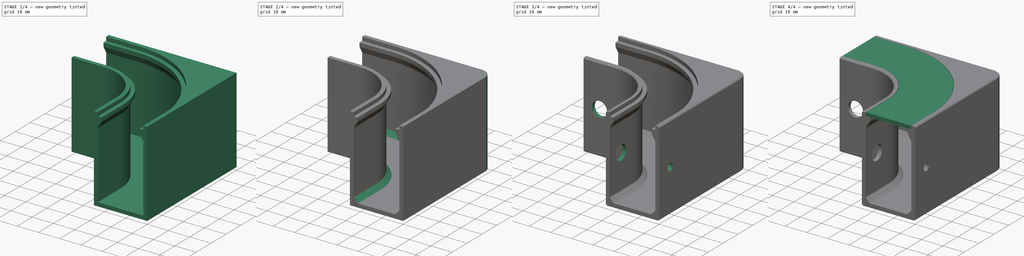
[diagram: build sequence overview — one tinted view per stage of 4, left to right]
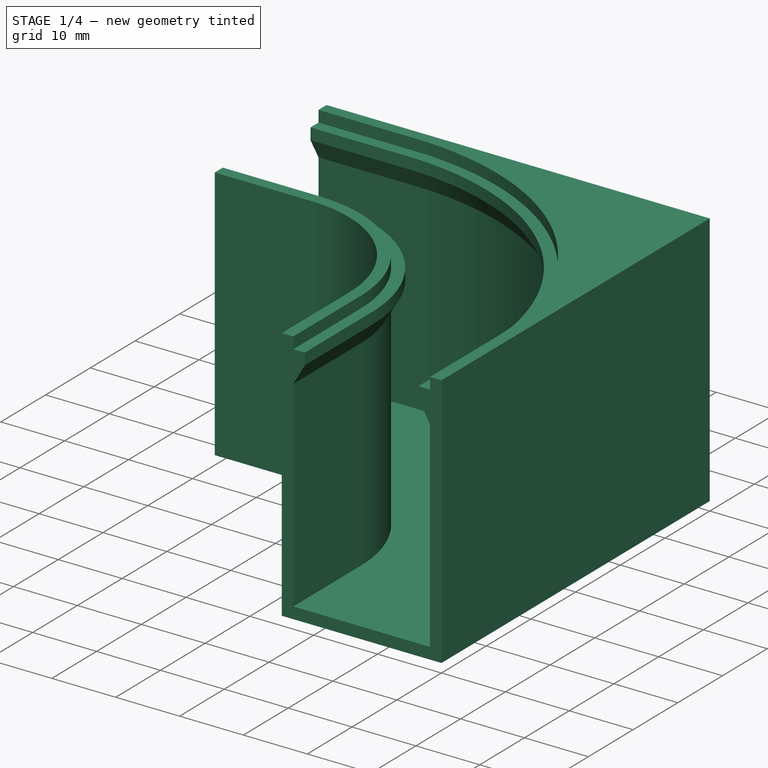
[diagram: stage 1 of 4 — iso view after this stage's code; geometry added in this stage tinted green]
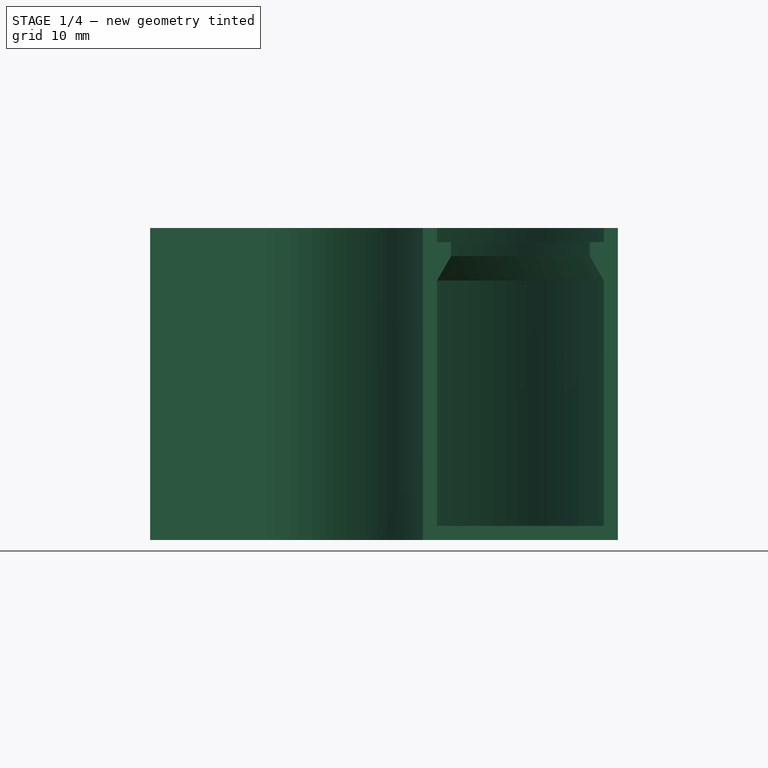
[diagram: stage 1 of 4 — front view after this stage's code; geometry added in this stage tinted green]
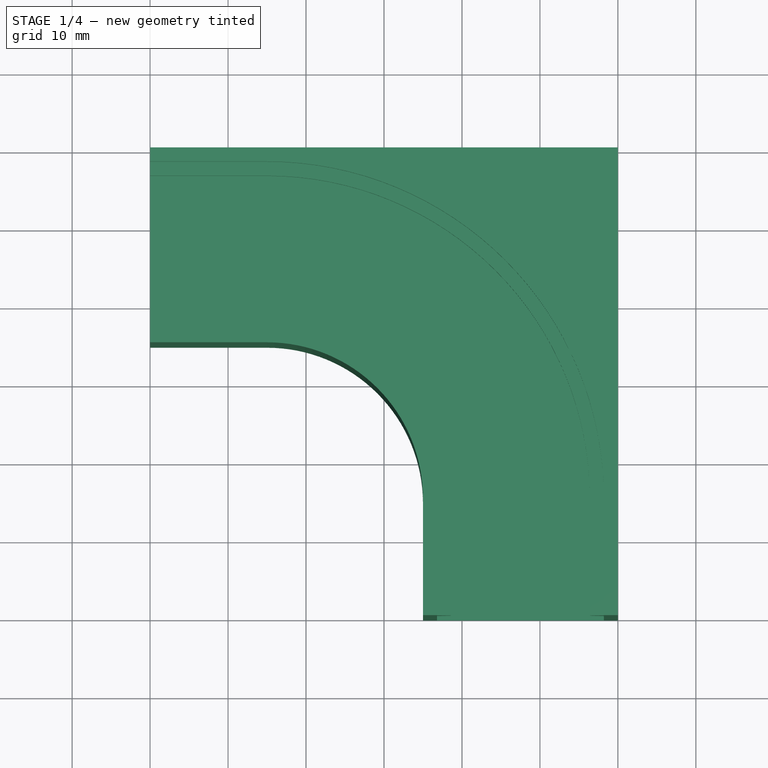
[diagram: stage 1 of 4 — top view after this stage's code; geometry added in this stage tinted green]
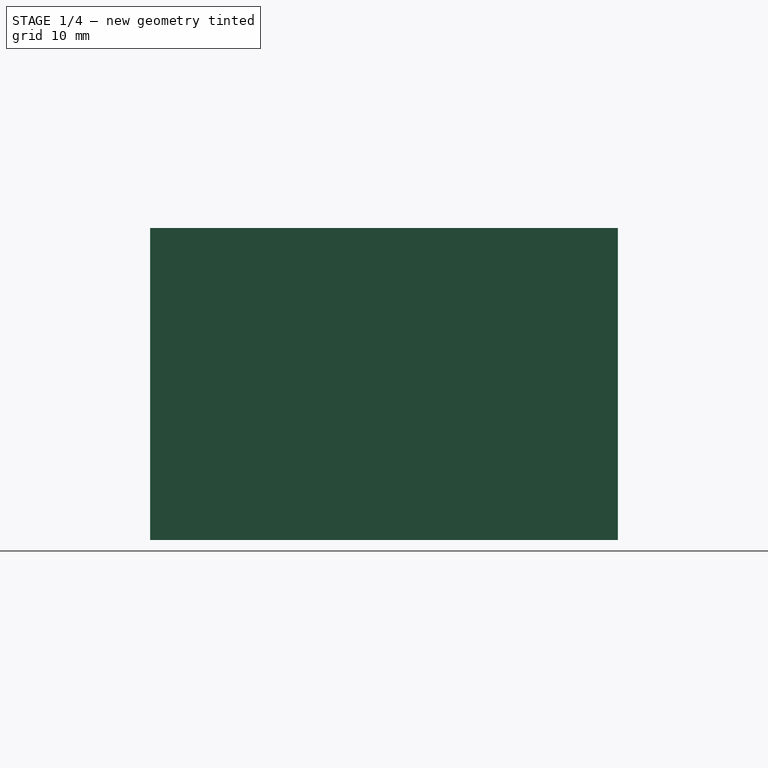
[diagram: stage 1 of 4 — right view after this stage's code; geometry added in this stage tinted green]
FCSTD DOCUMENT  (FreeCAD 0.19R24291 (Git))
Label: cable_canal_corner
License: All rights reserved
LicenseURL: http://en.wikipedia.org/wiki/All_rights_reserved
objects: Sketcher::SketchObject×5, PartDesign::Chamfer×3, PartDesign::Body×2, PartDesign::Hole×2, PartDesign::Pad×1, PartDesign::SubtractivePipe×1, PartDesign::Fillet×1, PartDesign::Plane×1, PartDesign::AdditivePipe×1, App::Part×1
note: 26 computed .brp shape members not serialized (recipe doc carries the construction recipe); baked Part::Feature solids carry a one-line shape summary decoded from their .brp

FEATURE [Sketcher::SketchObject] Sketch
  FullyConstrained = true
  MapMode = 5
  Support = -> [XY_Plane001]
  sketch-geometry (7):
    g0: LineSegment StartX=-60 StartY=0 StartZ=0 EndX=0 EndY=0 EndZ=0
    g1: LineSegment StartX=0 StartY=0 StartZ=0 EndX=0 EndY=-60 EndZ=0
    g2: LineSegment StartX=0 StartY=-60 StartZ=0 EndX=-25 EndY=-60 EndZ=0
    g3: LineSegment StartX=-25 StartY=-60 StartZ=0 EndX=-25 EndY=-45 EndZ=0
    g4: LineSegment StartX=-60 StartY=0 StartZ=0 EndX=-60 EndY=-25 EndZ=0
    g5: LineSegment StartX=-60 StartY=-25 StartZ=0 EndX=-45 EndY=-25 EndZ=0
    g6: ArcOfCircle CenterX=-45 CenterY=-45 CenterZ=0 NormalX=0 NormalY=0 NormalZ=1 AngleXU=0 Radius=20 StartAngle=7e-16 EndAngle=1.5708
  constraints (19):
    c: PointOnObject(g0,g-1)
    c: Coincident(g0,g-1)
    c: Coincident(g0,g1)
    c: PointOnObject(g1,g-2)
    c: Coincident(g1,g2)
    c: Horizontal(g2)
    c: Coincident(g2,g3)
    c: Vertical(g3)
    c: Coincident(g0,g4)
    c: Vertical(g4)
    c: Coincident(g4,g5)
    c: Horizontal(g5)
    c: Tangent(g6,g3) = -1.5708
    c: Tangent(g6,g5) = 1.5708
    c: Equal(g0,g1)
    c: Equal(g2,g4)
    c: DistanceX(g2,g2) = 25
    c: DistanceY(g1,g1) = 60
    c: Radius(g6) = 20
FEATURE [PartDesign::Pad] Pad
  Direction = (1,1,1)
  Length = 40
  Length2 = 100
  Profile = -> Sketch
  Type = 0
FEATURE [Sketcher::SketchObject] Sketch001
  ExternalGeometry = -> [Pad]
  FullyConstrained = true
  MapMode = 5
  Placement = pos=(0,-60,0) rot=(1,0,0;1.5708rad)
  Support = -> [Pad]
  expr: Constraints[45] = .Constraints.shell_thickness
  expr: Constraints[44] = .Constraints.shell_thickness
  sketch-geometry (18):
    g0: LineSegment StartX=-23.2 StartY=38.2 StartZ=0 EndX=-1.8 EndY=38.2 EndZ=0
    g1: LineSegment StartX=-1.8 StartY=38.2 StartZ=0 EndX=-1.8 EndY=1.8 EndZ=0
    g2: LineSegment StartX=-1.8 StartY=1.8 StartZ=0 EndX=-23.2 EndY=1.8 EndZ=0
    g3: LineSegment StartX=-23.2 StartY=1.8 StartZ=0 EndX=-23.2 EndY=38.2 EndZ=0
    g4: GeomPoint X=-12.5 Y=20 Z=0
    g5: GeomPoint X=-12.5 Y=40 Z=0
    g6: LineSegment StartX=-1.8 StartY=1.8 StartZ=0 EndX=-1.8 EndY=33.2823 EndZ=0
    g7: LineSegment StartX=-23.2 StartY=1.8 StartZ=0 EndX=-23.2 EndY=33.2823 EndZ=0
    g8: LineSegment StartX=-23.2 StartY=33.2823 StartZ=0 EndX=-21.4 EndY=36.4 EndZ=0
    g9: LineSegment StartX=-1.8 StartY=33.2823 StartZ=0 EndX=-3.6 EndY=36.4 EndZ=0
    g10: LineSegment StartX=-3.6 StartY=36.4 StartZ=0 EndX=-21.4 EndY=36.4 EndZ=0
    g11: LineSegment StartX=-21.4 StartY=36.4 StartZ=0 EndX=-21.4 EndY=38.2 EndZ=0
    g12: LineSegment StartX=-3.6 StartY=38.2 StartZ=0 EndX=-3.6 EndY=36.4 EndZ=0
    g13: LineSegment StartX=-3.6 StartY=38.2 StartZ=0 EndX=-1.8 EndY=38.2 EndZ=0
    g14: LineSegment StartX=-1.8 StartY=38.2 StartZ=0 EndX=-1.8 EndY=40 EndZ=0
    g15: LineSegment StartX=-1.8 StartY=40 StartZ=0 EndX=-23.2 EndY=40 EndZ=0
    g16: LineSegment StartX=-23.2 StartY=40 StartZ=0 EndX=-23.2 EndY=38.2 EndZ=0
    g17: LineSegment StartX=-23.2 StartY=38.2 StartZ=0 EndX=-21.4 EndY=38.2 EndZ=0
  constraints (46):
    c: Coincident(g0,g1)
    c: Coincident(g1,g2)
    c: Coincident(g2,g3)
    c: Coincident(g3,g0)
    c: Horizontal(g0)
    c: Horizontal(g2)
    c: Vertical(g1)
    c: Vertical(g3)
    c: Symmetric(g2,g0,g4)
    c: Symmetric(g-3,g-3,g5)
    c: Vertical(g5,g4)
    c: Coincident(g6,g2)
    c: PointOnObject(g6,g1)
    c: Coincident(g7,g2)
    c: PointOnObject(g7,g3)
    c: Coincident(g8,g7)
    c: Coincident(g9,g6)
    c: Coincident(g10,g9)
    c: Coincident(g10,g8)
    c: Horizontal(g10)
    c: Horizontal(g6,g7)
    c: Coincident(g11,g8)
    c: PointOnObject(g11,g0)
    c: Coincident(g12,g9)
    c: Vertical(g12)
    c: Vertical(g11)
    c: PointOnObject(g12,g0)
    c: Coincident(g12,g13)
    c: Coincident(g13,g0)
    c: Coincident(g13,g14)
    c: Vertical(g14)
    c: Coincident(g14,g15)
    c: PointOnObject(g15,g-3)
    c: Horizontal(g15)
    c: Coincident(g15,g16)
    c: Coincident(g16,g0)
    c: Coincident(g16,g17)
    c: Coincident(g17,g11)
    c: Vertical(g16)
    c: Equal(g17,g13)
    c: Angle(g9,g6) = 2.61799
    c: Equal(g13,g14)
    c: Equal(g13,g12)
    c: DistanceY(g-1,g2) = 1.8  'shell_thickness'
    c: DistanceX(g2,g-1) = 1.8
    c: DistanceY(g14,g14) = 1.8
FEATURE [PartDesign::SubtractivePipe] SubtractivePipe
  AuxilleryCurvelinear = true
  AuxillerySpineTangent = false
  BaseFeature = -> Pad
  Binormal = (0,0,0)
  Mode = 0
  Profile = -> Sketch001
  Spine = -> Pad [Edge13,Edge16,Edge19]
  SpineTangent = false
  Transformation = 0
  Transition = 0
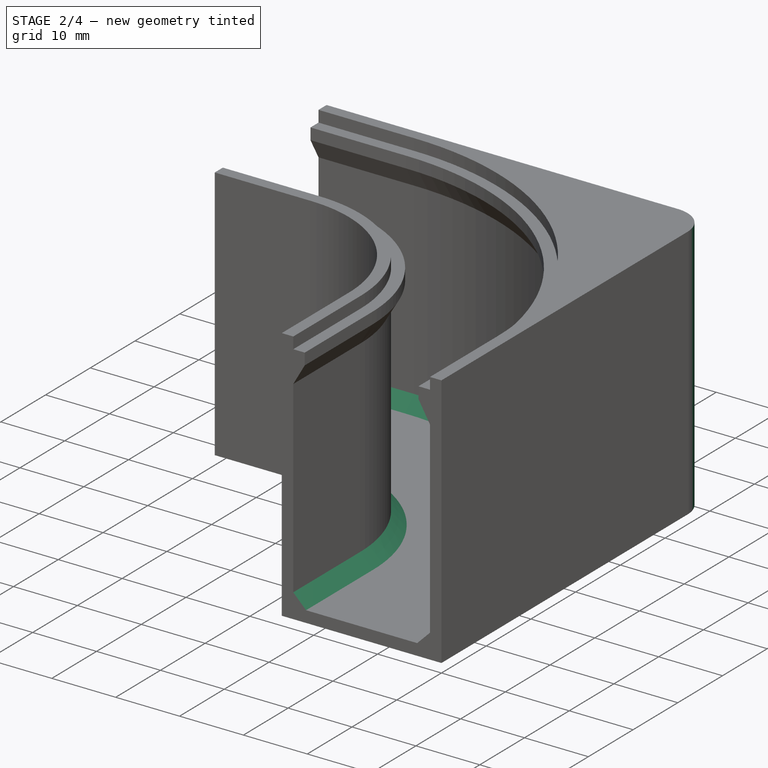
[diagram: stage 2 of 4 — iso view after this stage's code; geometry added in this stage tinted green]
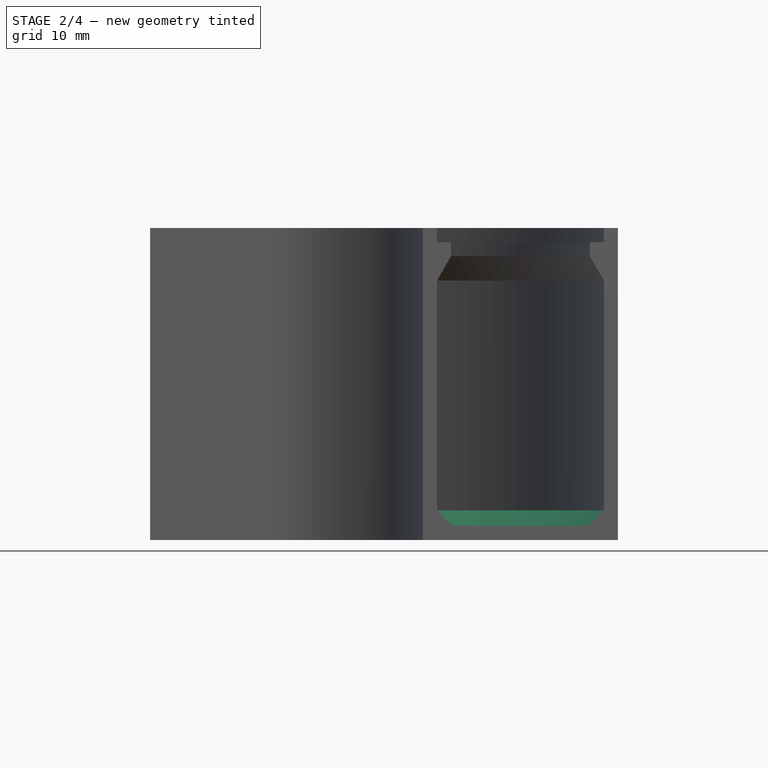
[diagram: stage 2 of 4 — front view after this stage's code; geometry added in this stage tinted green]
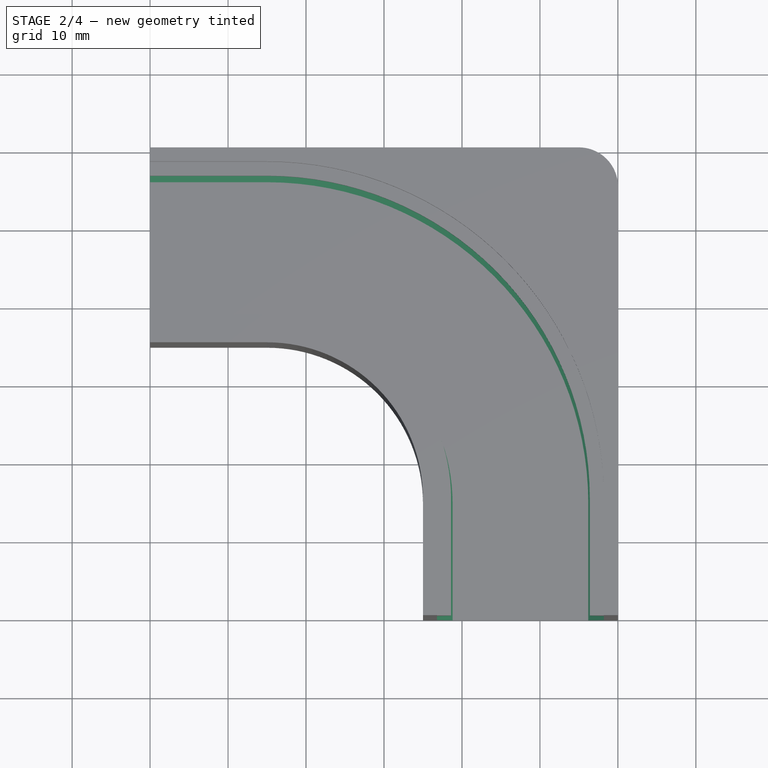
[diagram: stage 2 of 4 — top view after this stage's code; geometry added in this stage tinted green]
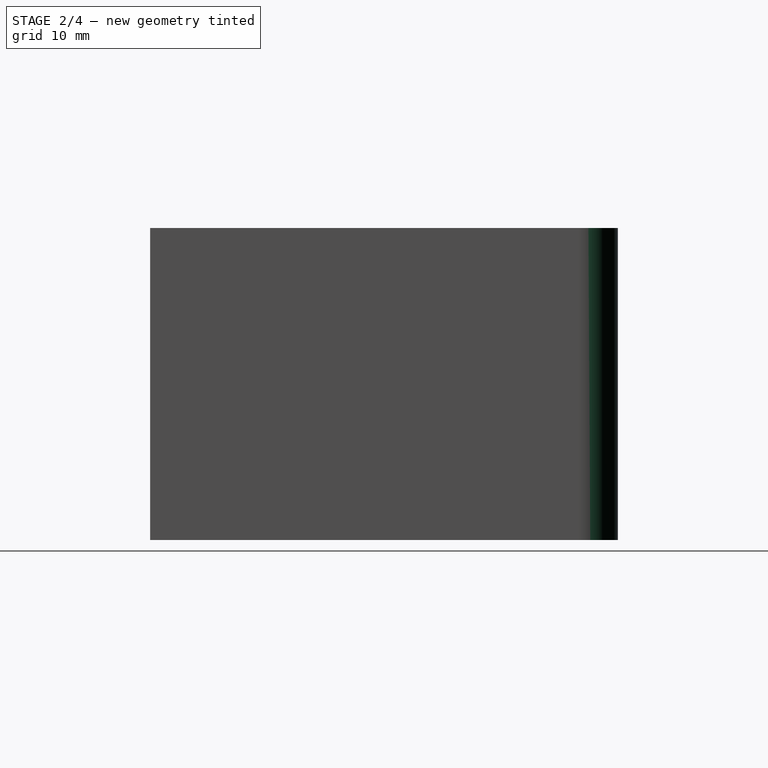
[diagram: stage 2 of 4 — right view after this stage's code; geometry added in this stage tinted green]
FEATURE [PartDesign::Fillet] Fillet
  Base = -> SubtractivePipe [Edge2]
  BaseFeature = -> SubtractivePipe
  Radius = 5
  SupportTransform = false
FEATURE [PartDesign::Chamfer] Chamfer
  Angle = 45
  Base = -> Fillet [Edge87,Edge89]
  BaseFeature = -> Fillet
  ChamferType = 0
  FlipDirection = false
  Size = 2
  Size2 = 1
  SupportTransform = false
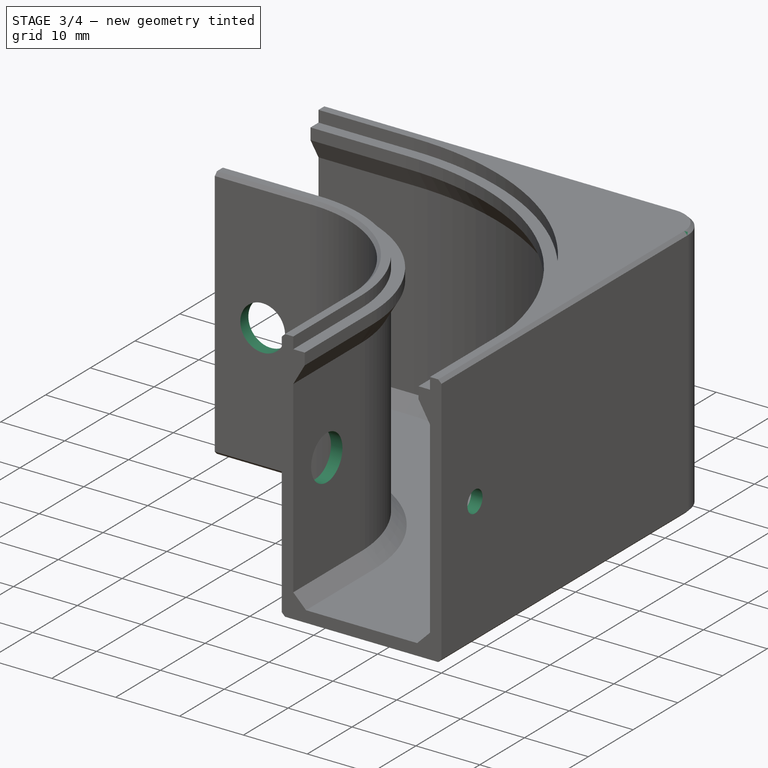
[diagram: stage 3 of 4 — iso view after this stage's code; geometry added in this stage tinted green]
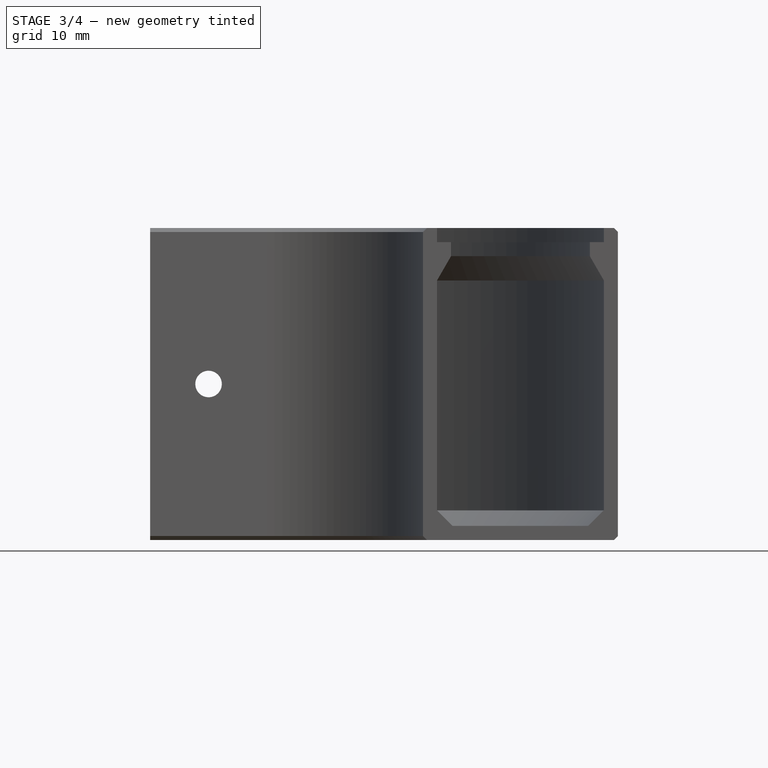
[diagram: stage 3 of 4 — front view after this stage's code; geometry added in this stage tinted green]
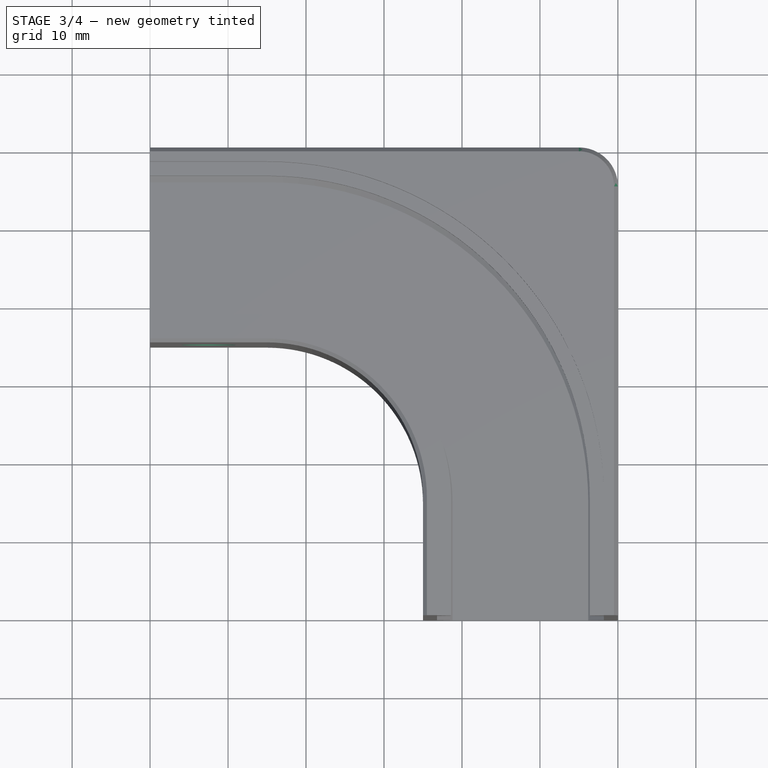
[diagram: stage 3 of 4 — top view after this stage's code; geometry added in this stage tinted green]
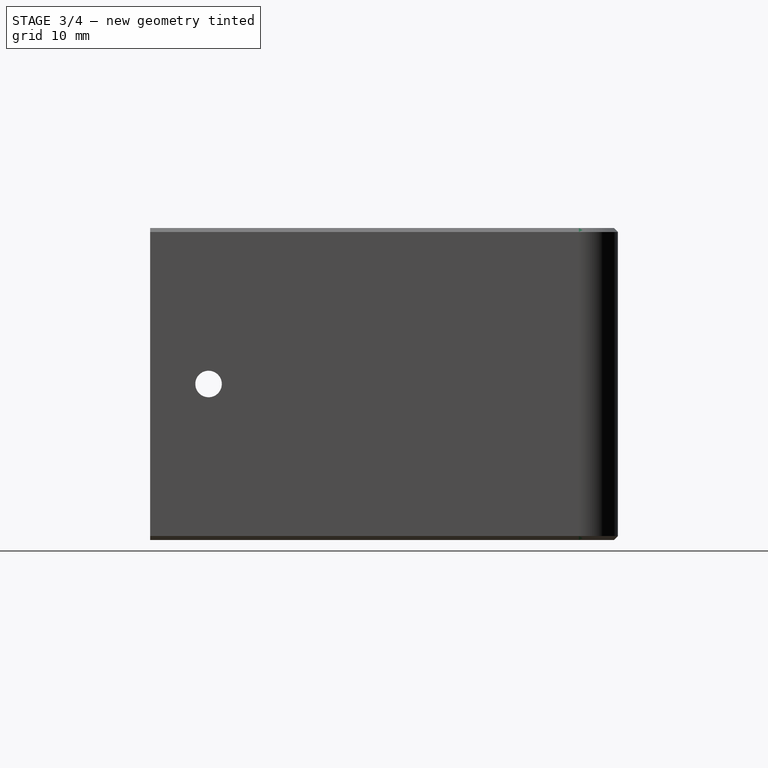
[diagram: stage 3 of 4 — right view after this stage's code; geometry added in this stage tinted green]
FEATURE [PartDesign::Chamfer] Chamfer001
  Angle = 45
  Base = -> Chamfer [Edge54,Edge57,Edge42,Edge62]
  BaseFeature = -> Chamfer
  ChamferType = 0
  FlipDirection = false
  Size = 0.5
  Size2 = 1
  SupportTransform = false
FEATURE [PartDesign::Body] Body001
  Group = -> [DatumPlane,Sketch002,AdditivePipe,Chamfer002]
  Origin = -> Origin002
  Tip = -> Chamfer002
FEATURE [Sketcher::SketchObject] Sketch003
  ExternalGeometry = -> [Chamfer001]
  FullyConstrained = false
  MapMode = 5
  Placement = pos=(-25,0,0) rot=(0.57735,-0.57735,-0.57735;2.0944rad)
  Support = -> [Chamfer001]
  sketch-geometry (2):
    g0: GeomPoint X=52.5 Y=20 Z=0
    g1: Circle CenterX=52.5 CenterY=20 CenterZ=0 NormalX=0 NormalY=0 NormalZ=1 AngleXU=0 Radius=4.38462
  constraints (2):
    c: Symmetric(g-4,g-3,g0)
    c: Coincident(g1,g0)
FEATURE [PartDesign::Hole] Hole
  BaseFeature = -> Chamfer001
  Depth = 25
  DepthType = 0
  Diameter = 3.4
  DrillForDepth = false
  DrillPoint = 0
  DrillPointAngle = 118
  HoleCutCountersinkAngle = 90
  HoleCutCustomValues = false
  HoleCutDepth = 10
  HoleCutDiameter = 7
  HoleCutType = 1
  ModelActualThread = false
  Profile = -> Sketch003
  Tapered = false
  TaperedAngle = 90
  ThreadAngle = 60
  ThreadClass = 0
  ThreadCutOffInner = 0.0270633
  ThreadCutOffOuter = 0.0541266
  ThreadDirection = 0
  ThreadFit = 0
  ThreadPitch = 0.25
  ThreadSize = 9
  ThreadType = 1
  Threaded = false
FEATURE [Sketcher::SketchObject] Sketch004
  ExternalGeometry = -> [Hole]
  FullyConstrained = false
  MapMode = 5
  Placement = pos=(0,-25,0) rot=(1,0,0;1.5708rad)
  Support = -> [Hole]
  sketch-geometry (2):
    g0: GeomPoint X=-52.5 Y=20 Z=0
    g1: Circle CenterX=-52.5 CenterY=20 CenterZ=0 NormalX=0 NormalY=0 NormalZ=1 AngleXU=0 Radius=3.22359
  constraints (2):
    c: Symmetric(g-3,g-4,g0)
    c: Coincident(g1,g0)
FEATURE [PartDesign::Hole] Hole001
  BaseFeature = -> Hole
  Depth = 25
  DepthType = 0
  Diameter = 3.4
  DrillForDepth = false
  DrillPoint = 0
  DrillPointAngle = 118
  HoleCutCountersinkAngle = 90
  HoleCutCustomValues = false
  HoleCutDepth = 10
  HoleCutDiameter = 7
  HoleCutType = 1
  ModelActualThread = false
  Profile = -> Sketch004
  Tapered = false
  TaperedAngle = 90
  ThreadAngle = 0
  ThreadClass = 0
  ThreadCutOffInner = 0
  ThreadCutOffOuter = 0
  ThreadDirection = 0
  ThreadFit = 0
  ThreadPitch = 0
  ThreadSize = 9
  ThreadType = 1
  Threaded = false
FEATURE [PartDesign::Body] Body
  Group = -> [Sketch,Pad,Sketch001,SubtractivePipe,Fillet,Chamfer,Chamfer001,Sketch003,Hole,Sketch004,Hole001]
  Origin = -> Origin001
  Tip = -> Hole001
FEATURE [App::Part] Part
  Group = -> [Body,Body001]
  Origin = -> Origin
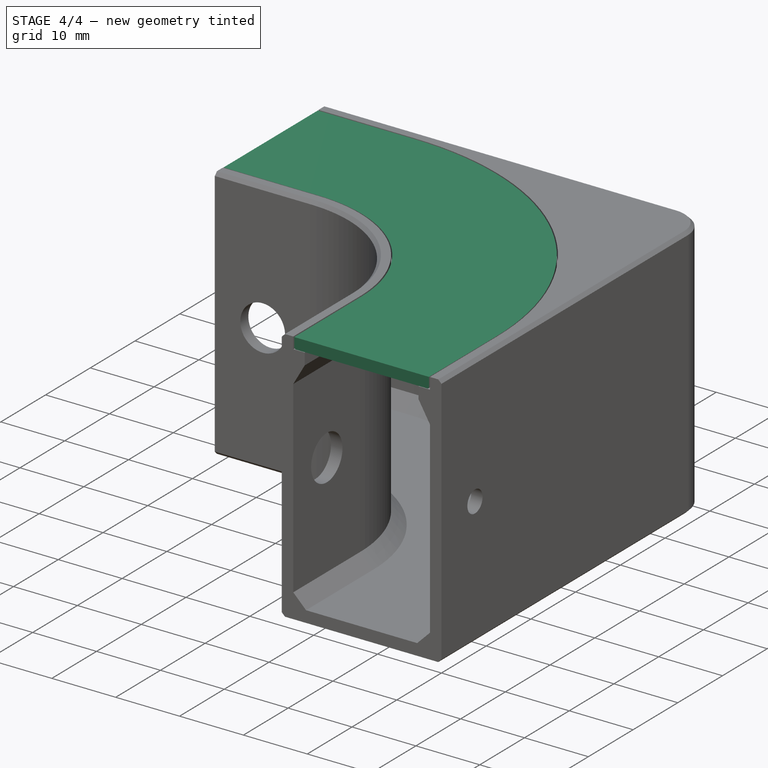
[diagram: stage 4 of 4 — iso view after this stage's code; geometry added in this stage tinted green]
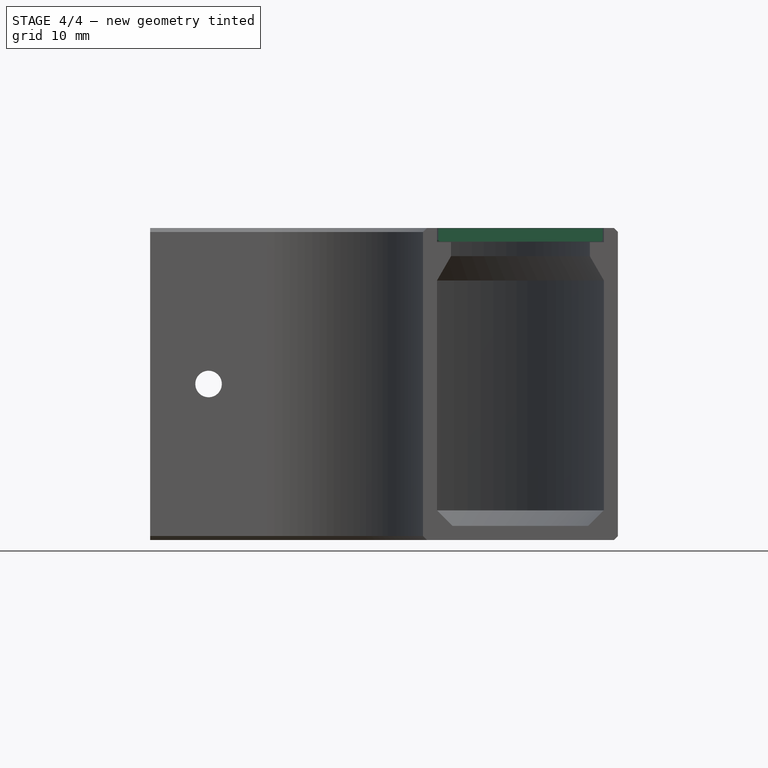
[diagram: stage 4 of 4 — front view after this stage's code; geometry added in this stage tinted green]
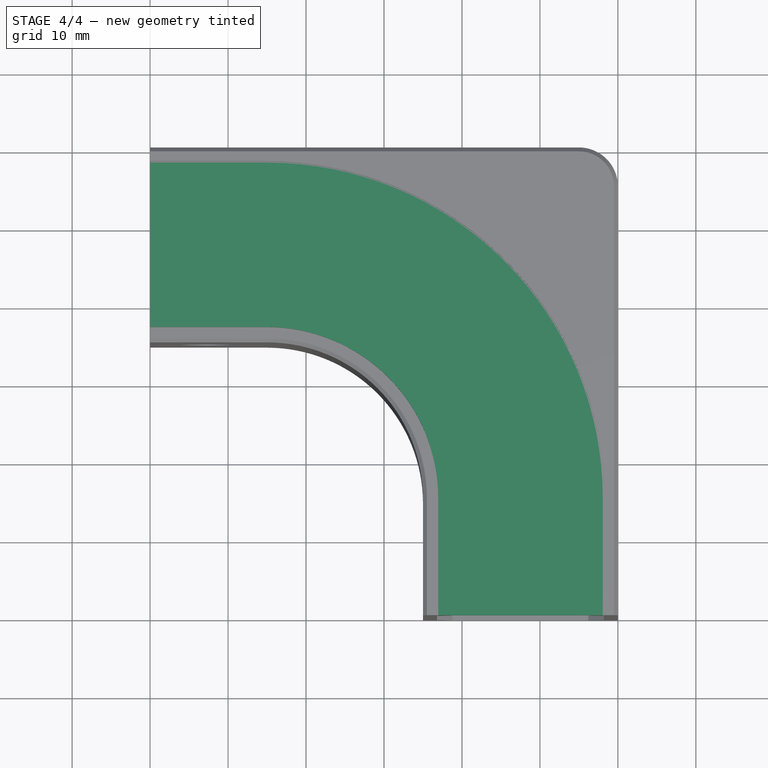
[diagram: stage 4 of 4 — top view after this stage's code; geometry added in this stage tinted green]
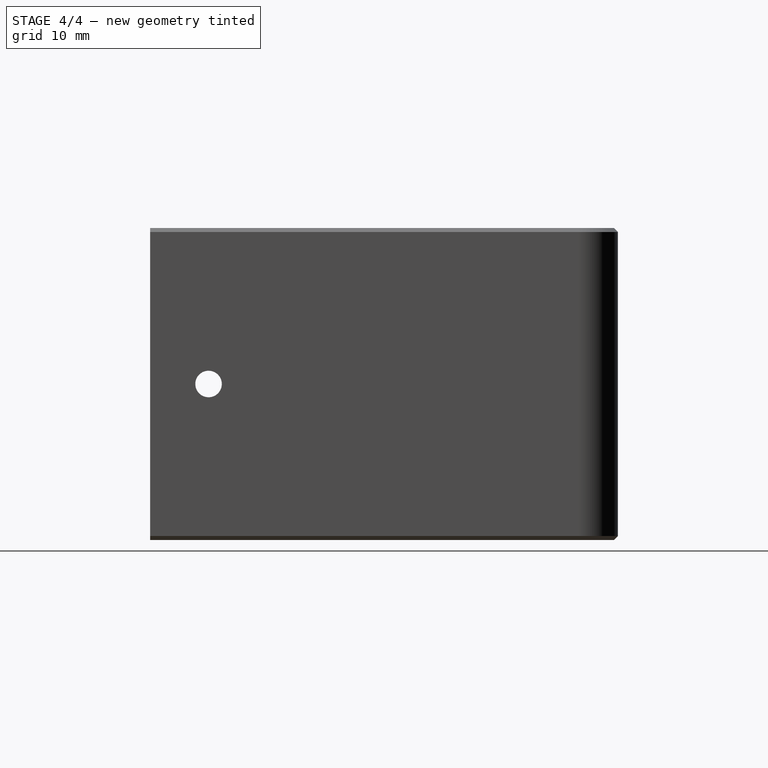
[diagram: stage 4 of 4 — right view after this stage's code; geometry added in this stage tinted green]
FEATURE [PartDesign::Plane] DatumPlane
  Length = 99.8622
  MapMode = 5
  Placement = pos=(0,-60,0) rot=(1,0,0;1.5708rad)
  ResizeMode = 0
  Support = -> [Chamfer001]
  Width = 79.828
FEATURE [Sketcher::SketchObject] Sketch002
  FullyConstrained = false
  MapMode = 5
  Placement = pos=(0,-60,0) rot=(1,0,0;1.5708rad)
  Support = -> [DatumPlane]
  sketch-geometry (4):
    g0: LineSegment StartX=-23.0433 StartY=39.9658 StartZ=0 EndX=-1.94331 EndY=39.9658 EndZ=0
    g1: LineSegment StartX=-1.94331 StartY=39.9658 StartZ=0 EndX=-1.94331 EndY=38.2658 EndZ=0
    g2: LineSegment StartX=-1.94331 StartY=38.2658 StartZ=0 EndX=-23.0433 EndY=38.2658 EndZ=0
    g3: LineSegment StartX=-23.0433 StartY=38.2658 StartZ=0 EndX=-23.0433 EndY=39.9658 EndZ=0
  constraints (10):
    c: Coincident(g0,g1)
    c: Coincident(g1,g2)
    c: Coincident(g2,g3)
    c: Coincident(g3,g0)
    c: Horizontal(g0)
    c: Horizontal(g2)
    c: Vertical(g1)
    c: Vertical(g3)
    c: DistanceX(g0,g0) = 21.1
    c: DistanceY(g1,g1) = 1.7
FEATURE [PartDesign::AdditivePipe] AdditivePipe
  AuxilleryCurvelinear = true
  AuxillerySpineTangent = false
  Binormal = (0,0,0)
  Mode = 0
  Placement = pos=(0,-60,0) rot=(1,0,0;1.5708rad)
  Profile = -> Sketch002
  Spine = -> Chamfer001 [Edge28,Edge26,Edge24]
  SpineTangent = false
  Transformation = 0
  Transition = 0
FEATURE [PartDesign::Chamfer] Chamfer002
  Angle = 45
  Base = -> AdditivePipe [Edge8,Edge10]
  BaseFeature = -> AdditivePipe
  ChamferType = 0
  FlipDirection = false
  Placement = pos=(0,-60,0) rot=(1,0,0;1.5708rad)
  Size = 0.2
  Size2 = 1
  SupportTransform = false
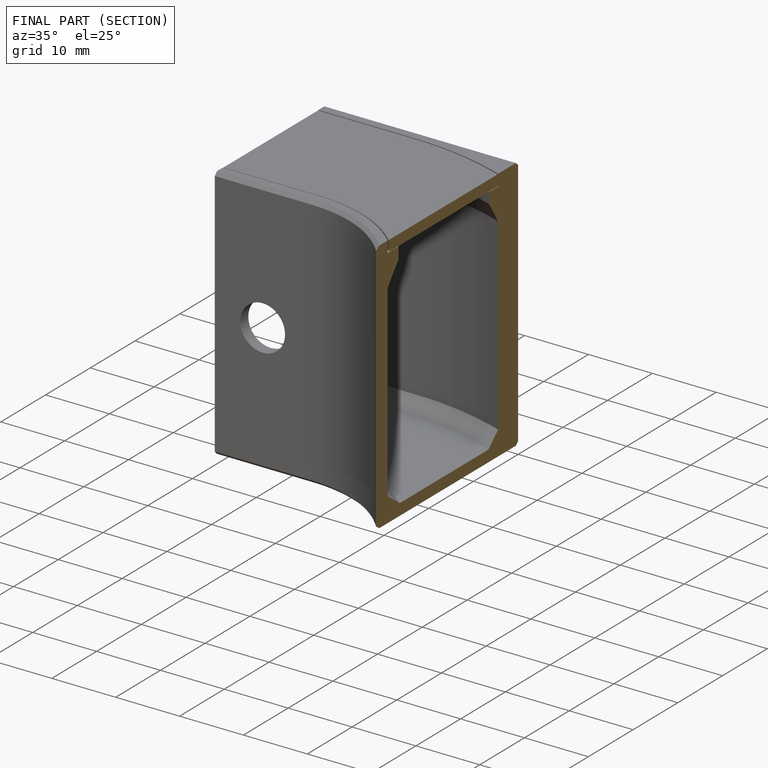
[diagram: finished part — half-section view (interior)]
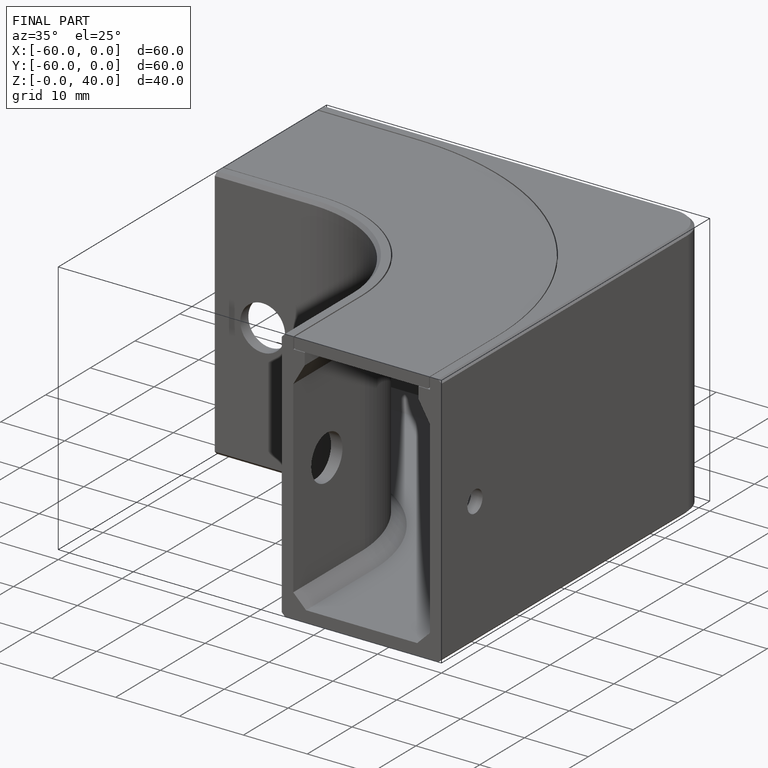
[diagram: finished part — iso view with bounding-box wireframe]
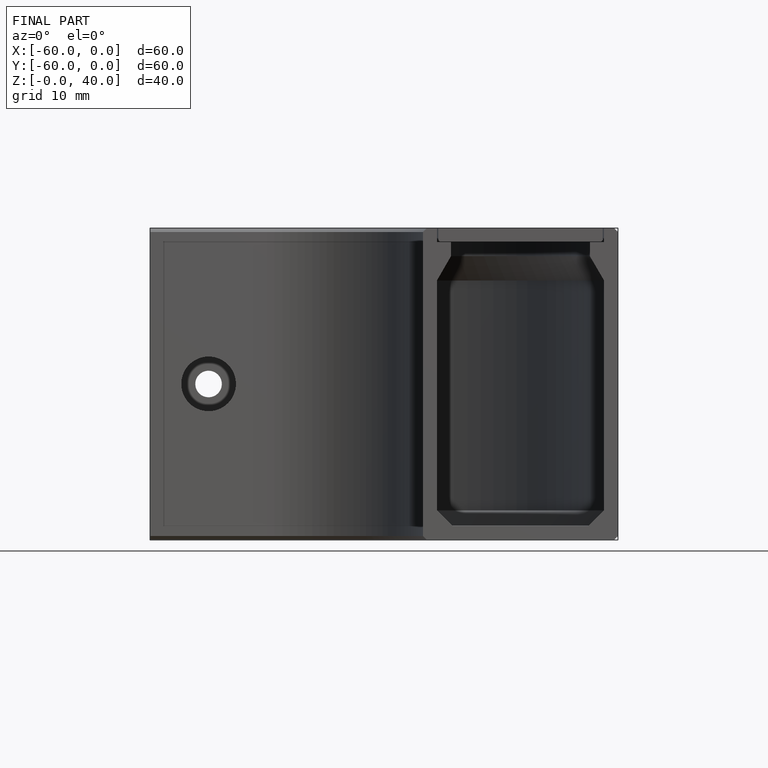
[diagram: finished part — front view with bounding-box wireframe]
